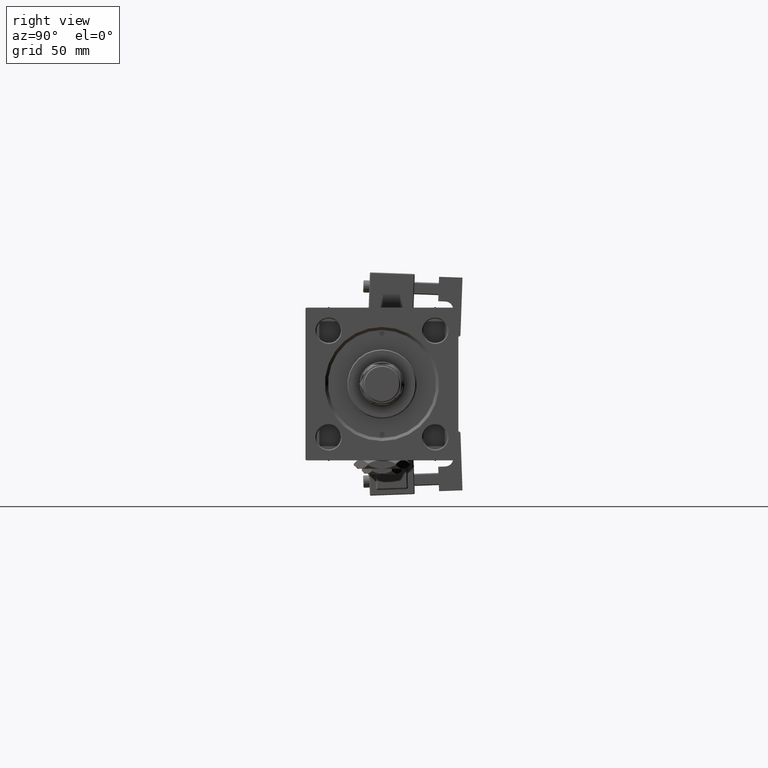
[diagram: clean part render]
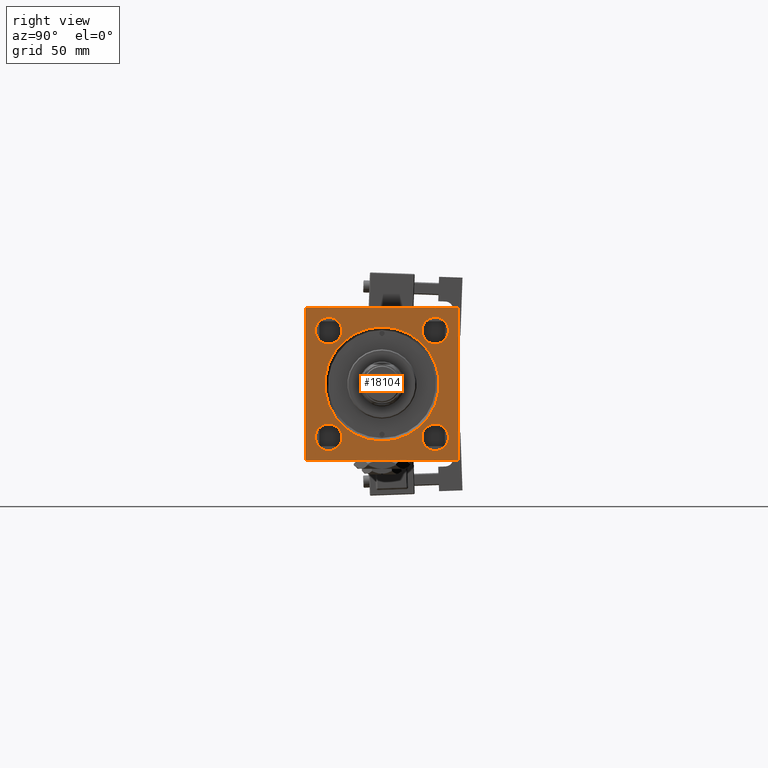
[diagram: same view with one face highlighted and labeled with its STEP entity id]
A machine part, right view. The second image highlights one B-rep face of the part: STEP entity #18104.
In plain terms, the highlighted planar face has unit normal (-1, 0, 0).
Its self-contained STEP definition (entity closure, byte-faithful):
#104 = LINE ( 'NONE', #46268, #29240 ) ;
#220 = VECTOR ( 'NONE', #38871, 1000.000000000000000 ) ;
#575 = ORIENTED_EDGE ( 'NONE', *, *, #4826, .T. ) ;
#1094 = ORIENTED_EDGE ( 'NONE', *, *, #31060, .T. ) ;
#1117 = DIRECTION ( 'NONE',  ( 0.000000000000000000, 0.000000000000000000, 1.000000000000000000 ) ) ;
#1633 = ORIENTED_EDGE ( 'NONE', *, *, #34597, .T. ) ;
#1709 = AXIS2_PLACEMENT_3D ( 'NONE', #12959, #30283, #8412 ) ;
#1781 = CIRCLE ( 'NONE', #16299, 6.499999999999946709 ) ;
#2251 = EDGE_LOOP ( 'NONE', ( #41414, #6736, #8197, #52029, #50805, #575, #1633, #32993 ) ) ;
#2304 = DIRECTION ( 'NONE',  ( 0.000000000000000000, 0.000000000000000000, 1.000000000000000000 ) ) ;
#2829 = AXIS2_PLACEMENT_3D ( 'NONE', #4162, #21477, #12979 ) ;
#2877 = CARTESIAN_POINT ( 'NONE',  ( 259.0000000000000000, -26.14999999999999147, 26.14999999999999503 ) ) ;
#2915 = AXIS2_PLACEMENT_3D ( 'NONE', #28790, #20817, #7755 ) ;
#2937 = FACE_BOUND ( 'NONE', #54499, .T. ) ;
#3909 = CARTESIAN_POINT ( 'NONE',  ( 259.0000000000000000, 26.14999999999999858, -26.15000000000000213 ) ) ;
#4058 = FACE_BOUND ( 'NONE', #31450, .T. ) ;
#4162 = CARTESIAN_POINT ( 'NONE',  ( 259.0000000000000000, -26.15000000000000213, -26.15000000000000213 ) ) ;
#4169 = CARTESIAN_POINT ( 'NONE',  ( 259.0000000000000000, 37.50000000000000000, 37.49999999999999289 ) ) ;
#4343 = VECTOR ( 'NONE', #42398, 1000.000000000000000 ) ;
#4826 = EDGE_CURVE ( 'NONE', #29735, #6041, #54404, .T. ) ;
#5090 = CARTESIAN_POINT ( 'NONE',  ( 259.0000000000000000, 26.14999999999999858, -26.15000000000000213 ) ) ;
#6041 = VERTEX_POINT ( 'NONE', #29555 ) ;
#6388 = VERTEX_POINT ( 'NONE', #51703 ) ;
#6736 = ORIENTED_EDGE ( 'NONE', *, *, #42011, .T. ) ;
#6798 = EDGE_CURVE ( 'NONE', #6388, #39628, #25276, .T. ) ;
#7755 = DIRECTION ( 'NONE',  ( 0.000000000000000000, 0.000000000000000000, 1.000000000000000000 ) ) ;
#8197 = ORIENTED_EDGE ( 'NONE', *, *, #53144, .F. ) ;
#8313 = DIRECTION ( 'NONE',  ( 0.000000000000000000, 0.000000000000000000, 1.000000000000000000 ) ) ;
#8412 = DIRECTION ( 'NONE',  ( 0.000000000000000000, 0.000000000000000000, 1.000000000000000000 ) ) ;
#9168 = DIRECTION ( 'NONE',  ( -0.000000000000000000, 0.7071067811865230368, 0.7071067811865721087 ) ) ;
#9508 = ORIENTED_EDGE ( 'NONE', *, *, #54878, .T. ) ;
#9810 = CARTESIAN_POINT ( 'NONE',  ( 259.0000000000000000, 26.14999999999999858, 26.15000000000000213 ) ) ;
#9964 = EDGE_CURVE ( 'NONE', #52516, #42372, #27414, .T. ) ;
#10631 = DIRECTION ( 'NONE',  ( 0.000000000000000000, 0.7071067811865474617, -0.7071067811865474617 ) ) ;
#11100 = VECTOR ( 'NONE', #24915, 1000.000000000000000 ) ;
#11462 = FACE_OUTER_BOUND ( 'NONE', #2251, .T. ) ;
#12290 = CARTESIAN_POINT ( 'NONE',  ( 259.0000000000000000, 0.000000000000000000, 0.000000000000000000 ) ) ;
#12378 = CARTESIAN_POINT ( 'NONE',  ( 259.0000000000000000, 37.50000000000000000, -36.99999999999996447 ) ) ;
#12461 = EDGE_CURVE ( 'NONE', #21137, #31940, #1781, .T. ) ;
#12587 = CIRCLE ( 'NONE', #22532, 6.499999999999946709 ) ;
#12838 = VERTEX_POINT ( 'NONE', #15531 ) ;
#12895 = CIRCLE ( 'NONE', #49249, 6.499999999999953815 ) ;
#12959 = CARTESIAN_POINT ( 'NONE',  ( 259.0000000000000000, 26.14999999999999858, 26.15000000000000213 ) ) ;
#12979 = DIRECTION ( 'NONE',  ( 0.000000000000000000, 0.000000000000000000, 1.000000000000000000 ) ) ;
#13515 = CIRCLE ( 'NONE', #1709, 6.499999999999953815 ) ;
#14644 = EDGE_CURVE ( 'NONE', #29735, #16868, #43141, .T. ) ;
#14878 = ORIENTED_EDGE ( 'NONE', *, *, #33112, .T. ) ;
#15037 = DIRECTION ( 'NONE',  ( -1.000000000000000000, -0.000000000000000000, 0.000000000000000000 ) ) ;
#15074 = VERTEX_POINT ( 'NONE', #17997 ) ;
#15531 = CARTESIAN_POINT ( 'NONE',  ( 259.0000000000000000, 26.14999999999999858, 32.64999999999995595 ) ) ;
#15828 = CARTESIAN_POINT ( 'NONE',  ( 259.0000000000000000, 0.000000000000000000, -28.00000000000005329 ) ) ;
#16180 = VECTOR ( 'NONE', #18049, 1000.000000000000000 ) ;
#16299 = AXIS2_PLACEMENT_3D ( 'NONE', #54038, #15037, #32367 ) ;
#16350 = CARTESIAN_POINT ( 'NONE',  ( 259.0000000000000000, 3.429011037612595587E-15, 28.00000000000005329 ) ) ;
#16504 = DIRECTION ( 'NONE',  ( -1.000000000000000000, -0.000000000000000000, 0.000000000000000000 ) ) ;
#16694 = LINE ( 'NONE', #43153, #220 ) ;
#16753 = DIRECTION ( 'NONE',  ( -1.000000000000000000, -0.000000000000000000, 0.000000000000000000 ) ) ;
#16778 = DIRECTION ( 'NONE',  ( 0.000000000000000000, 0.000000000000000000, 1.000000000000000000 ) ) ;
#16868 = VERTEX_POINT ( 'NONE', #12378 ) ;
#17594 = EDGE_CURVE ( 'NONE', #42254, #52516, #16694, .T. ) ;
#17997 = CARTESIAN_POINT ( 'NONE',  ( 259.0000000000000000, -36.99999999999995737, -37.50000000000000000 ) ) ;
#18049 = DIRECTION ( 'NONE',  ( 0.000000000000000000, -9.251858538542972814E-17, -1.000000000000000000 ) ) ;
#18104 = ADVANCED_FACE ( 'NONE', ( #4058, #33056, #29920, #2937, #47315, #11462 ), #46746, .F. ) ;
#19310 = AXIS2_PLACEMENT_3D ( 'NONE', #9810, #27415, #22302 ) ;
#19620 = CARTESIAN_POINT ( 'NONE',  ( 259.0000000000000000, 0.000000000000000000, 0.000000000000000000 ) ) ;
#20326 = VERTEX_POINT ( 'NONE', #15828 ) ;
#20372 = DIRECTION ( 'NONE',  ( -1.000000000000000000, -0.000000000000000000, 0.000000000000000000 ) ) ;
#20642 = LINE ( 'NONE', #4169, #11100 ) ;
#20817 = DIRECTION ( 'NONE',  ( -1.000000000000000000, -0.000000000000000000, 0.000000000000000000 ) ) ;
#20919 = VERTEX_POINT ( 'NONE', #30378 ) ;
#20944 = CIRCLE ( 'NONE', #2829, 6.499999999999953815 ) ;
#21137 = VERTEX_POINT ( 'NONE', #25483 ) ;
#21477 = DIRECTION ( 'NONE',  ( -1.000000000000000000, -0.000000000000000000, 0.000000000000000000 ) ) ;
#22302 = DIRECTION ( 'NONE',  ( 0.000000000000000000, 0.000000000000000000, 1.000000000000000000 ) ) ;
#22408 = DIRECTION ( 'NONE',  ( -1.000000000000000000, -0.000000000000000000, 0.000000000000000000 ) ) ;
#22532 = AXIS2_PLACEMENT_3D ( 'NONE', #2877, #16504, #16778 ) ;
#23436 = AXIS2_PLACEMENT_3D ( 'NONE', #47233, #16753, #50650 ) ;
#24411 = ORIENTED_EDGE ( 'NONE', *, *, #54749, .T. ) ;
#24462 = CARTESIAN_POINT ( 'NONE',  ( 259.0000000000000000, -37.00000000000000000, 37.49999999999997868 ) ) ;
#24646 = DIRECTION ( 'NONE',  ( 0.000000000000000000, 0.000000000000000000, 1.000000000000000000 ) ) ;
#24915 = DIRECTION ( 'NONE',  ( 0.000000000000000000, -1.000000000000000000, -1.850371707708594316E-16 ) ) ;
#25023 = CARTESIAN_POINT ( 'NONE',  ( 259.0000000000000000, 37.50000000000000000, -37.50000000000000000 ) ) ;
#25159 = CARTESIAN_POINT ( 'NONE',  ( 259.0000000000000000, -37.50000000000000000, 36.99999999999995026 ) ) ;
#25276 = CIRCLE ( 'NONE', #23436, 6.499999999999953815 ) ;
#25483 = CARTESIAN_POINT ( 'NONE',  ( 259.0000000000000000, -26.14999999999999147, 19.65000000000004832 ) ) ;
#26195 = ORIENTED_EDGE ( 'NONE', *, *, #40490, .T. ) ;
#27414 = LINE ( 'NONE', #30571, #16180 ) ;
#27415 = DIRECTION ( 'NONE',  ( -1.000000000000000000, -0.000000000000000000, 0.000000000000000000 ) ) ;
#27861 = VERTEX_POINT ( 'NONE', #30024 ) ;
#28186 = CARTESIAN_POINT ( 'NONE',  ( 259.0000000000000000, 36.99999999999997158, 37.49999999999999289 ) ) ;
#28790 = CARTESIAN_POINT ( 'NONE',  ( 259.0000000000000000, 0.000000000000000000, 0.000000000000000000 ) ) ;
#29240 = VECTOR ( 'NONE', #9168, 1000.000000000000000 ) ;
#29313 = LINE ( 'NONE', #25023, #4343 ) ;
#29555 = CARTESIAN_POINT ( 'NONE',  ( 259.0000000000000000, 36.99999999999997158, 37.49999999999999289 ) ) ;
#29735 = VERTEX_POINT ( 'NONE', #32001 ) ;
#29749 = VECTOR ( 'NONE', #36726, 1000.000000000000000 ) ;
#29920 = FACE_BOUND ( 'NONE', #51362, .T. ) ;
#30024 = CARTESIAN_POINT ( 'NONE',  ( 259.0000000000000000, 26.14999999999999858, -32.64999999999995595 ) ) ;
#30283 = DIRECTION ( 'NONE',  ( -1.000000000000000000, -0.000000000000000000, 0.000000000000000000 ) ) ;
#30378 = CARTESIAN_POINT ( 'NONE',  ( 259.0000000000000000, 26.14999999999999858, -19.65000000000005187 ) ) ;
#30571 = CARTESIAN_POINT ( 'NONE',  ( 259.0000000000000000, -37.50000000000000000, 37.49999999999997868 ) ) ;
#30589 = DIRECTION ( 'NONE',  ( 0.000000000000000000, 0.000000000000000000, -1.000000000000000000 ) ) ;
#30715 = CIRCLE ( 'NONE', #37983, 28.00000000000005329 ) ;
#31060 = EDGE_CURVE ( 'NONE', #39628, #6388, #20944, .T. ) ;
#31146 = CARTESIAN_POINT ( 'NONE',  ( 259.0000000000000000, -26.14999999999999147, 32.64999999999994174 ) ) ;
#31450 = EDGE_LOOP ( 'NONE', ( #55382, #50603 ) ) ;
#31764 = ORIENTED_EDGE ( 'NONE', *, *, #36389, .T. ) ;
#31940 = VERTEX_POINT ( 'NONE', #31146 ) ;
#32001 = CARTESIAN_POINT ( 'NONE',  ( 259.0000000000000000, 37.50000000000000000, 36.99999999999999289 ) ) ;
#32367 = DIRECTION ( 'NONE',  ( 0.000000000000000000, 0.000000000000000000, 1.000000000000000000 ) ) ;
#32993 = ORIENTED_EDGE ( 'NONE', *, *, #17594, .T. ) ;
#33056 = FACE_BOUND ( 'NONE', #45392, .T. ) ;
#33112 = EDGE_CURVE ( 'NONE', #20919, #27861, #12895, .T. ) ;
#33349 = LINE ( 'NONE', #49622, #53994 ) ;
#34597 = EDGE_CURVE ( 'NONE', #6041, #42254, #20642, .T. ) ;
#36389 = EDGE_CURVE ( 'NONE', #40946, #20326, #47387, .T. ) ;
#36703 = DIRECTION ( 'NONE',  ( -1.000000000000000000, -0.000000000000000000, 0.000000000000000000 ) ) ;
#36726 = DIRECTION ( 'NONE',  ( 0.000000000000000000, -0.7071067811865672237, 0.7071067811865279218 ) ) ;
#37664 = EDGE_CURVE ( 'NONE', #38664, #16868, #104, .T. ) ;
#37983 = AXIS2_PLACEMENT_3D ( 'NONE', #19620, #36703, #2304 ) ;
#38473 = CARTESIAN_POINT ( 'NONE',  ( 259.0000000000000000, 37.00000000000000000, -37.50000000000000000 ) ) ;
#38664 = VERTEX_POINT ( 'NONE', #38473 ) ;
#38856 = CARTESIAN_POINT ( 'NONE',  ( 259.0000000000000000, 37.50000000000000000, 37.49999999999999289 ) ) ;
#38871 = DIRECTION ( 'NONE',  ( -0.000000000000000000, -0.7071067811865279218, -0.7071067811865672237 ) ) ;
#39325 = EDGE_CURVE ( 'NONE', #54151, #12838, #49328, .T. ) ;
#39343 = CIRCLE ( 'NONE', #52100, 6.499999999999953815 ) ;
#39628 = VERTEX_POINT ( 'NONE', #40159 ) ;
#40159 = CARTESIAN_POINT ( 'NONE',  ( 259.0000000000000000, -26.15000000000000213, -32.64999999999995595 ) ) ;
#40490 = EDGE_CURVE ( 'NONE', #27861, #20919, #39343, .T. ) ;
#40545 = ORIENTED_EDGE ( 'NONE', *, *, #12461, .T. ) ;
#40946 = VERTEX_POINT ( 'NONE', #16350 ) ;
#41414 = ORIENTED_EDGE ( 'NONE', *, *, #9964, .T. ) ;
#42011 = EDGE_CURVE ( 'NONE', #42372, #15074, #33349, .T. ) ;
#42254 = VERTEX_POINT ( 'NONE', #24462 ) ;
#42372 = VERTEX_POINT ( 'NONE', #45276 ) ;
#42398 = DIRECTION ( 'NONE',  ( 0.000000000000000000, -1.000000000000000000, 0.000000000000000000 ) ) ;
#43141 = LINE ( 'NONE', #38856, #53652 ) ;
#43153 = CARTESIAN_POINT ( 'NONE',  ( 259.0000000000000000, -37.50000000000000000, 36.99999999999995026 ) ) ;
#44852 = ORIENTED_EDGE ( 'NONE', *, *, #6798, .T. ) ;
#45276 = CARTESIAN_POINT ( 'NONE',  ( 259.0000000000000000, -37.50000000000000711, -36.99999999999995026 ) ) ;
#45392 = EDGE_LOOP ( 'NONE', ( #40545, #9508 ) ) ;
#46268 = CARTESIAN_POINT ( 'NONE',  ( 259.0000000000000000, 37.50000000000000000, -36.99999999999996447 ) ) ;
#46652 = EDGE_LOOP ( 'NONE', ( #24411, #31764 ) ) ;
#46746 = PLANE ( 'NONE',  #2915 ) ;
#47013 = DIRECTION ( 'NONE',  ( -1.000000000000000000, -0.000000000000000000, 0.000000000000000000 ) ) ;
#47233 = CARTESIAN_POINT ( 'NONE',  ( 259.0000000000000000, -26.15000000000000213, -26.15000000000000213 ) ) ;
#47315 = FACE_BOUND ( 'NONE', #46652, .T. ) ;
#47387 = CIRCLE ( 'NONE', #54655, 28.00000000000005329 ) ;
#49249 = AXIS2_PLACEMENT_3D ( 'NONE', #3909, #20372, #24646 ) ;
#49328 = CIRCLE ( 'NONE', #19310, 6.499999999999953815 ) ;
#49622 = CARTESIAN_POINT ( 'NONE',  ( 259.0000000000000000, -36.99999999999995737, -37.50000000000000000 ) ) ;
#50603 = ORIENTED_EDGE ( 'NONE', *, *, #55478, .T. ) ;
#50650 = DIRECTION ( 'NONE',  ( 0.000000000000000000, 0.000000000000000000, 1.000000000000000000 ) ) ;
#50805 = ORIENTED_EDGE ( 'NONE', *, *, #14644, .F. ) ;
#51362 = EDGE_LOOP ( 'NONE', ( #1094, #44852 ) ) ;
#51703 = CARTESIAN_POINT ( 'NONE',  ( 259.0000000000000000, -26.15000000000000213, -19.65000000000005187 ) ) ;
#52029 = ORIENTED_EDGE ( 'NONE', *, *, #37664, .T. ) ;
#52100 = AXIS2_PLACEMENT_3D ( 'NONE', #5090, #22408, #1117 ) ;
#52516 = VERTEX_POINT ( 'NONE', #25159 ) ;
#53144 = EDGE_CURVE ( 'NONE', #38664, #15074, #29313, .T. ) ;
#53652 = VECTOR ( 'NONE', #30589, 1000.000000000000000 ) ;
#53817 = CARTESIAN_POINT ( 'NONE',  ( 259.0000000000000000, 26.14999999999999858, 19.65000000000004832 ) ) ;
#53994 = VECTOR ( 'NONE', #10631, 1000.000000000000114 ) ;
#54038 = CARTESIAN_POINT ( 'NONE',  ( 259.0000000000000000, -26.14999999999999147, 26.14999999999999503 ) ) ;
#54151 = VERTEX_POINT ( 'NONE', #53817 ) ;
#54404 = LINE ( 'NONE', #28186, #29749 ) ;
#54499 = EDGE_LOOP ( 'NONE', ( #26195, #14878 ) ) ;
#54655 = AXIS2_PLACEMENT_3D ( 'NONE', #12290, #47013, #8313 ) ;
#54749 = EDGE_CURVE ( 'NONE', #20326, #40946, #30715, .T. ) ;
#54878 = EDGE_CURVE ( 'NONE', #31940, #21137, #12587, .T. ) ;
#55382 = ORIENTED_EDGE ( 'NONE', *, *, #39325, .T. ) ;
#55478 = EDGE_CURVE ( 'NONE', #12838, #54151, #13515, .T. ) ;